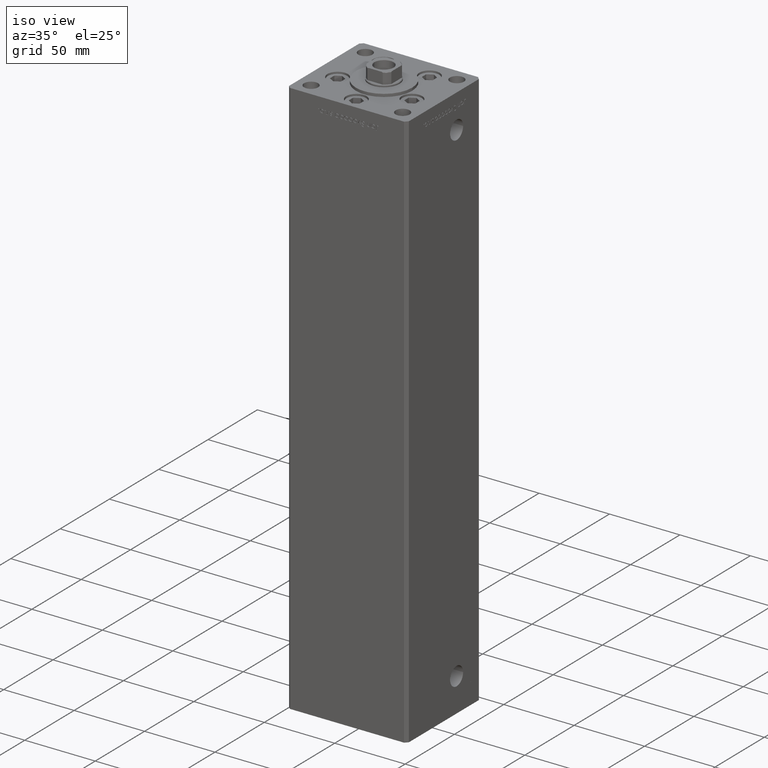
[diagram: clean part render]
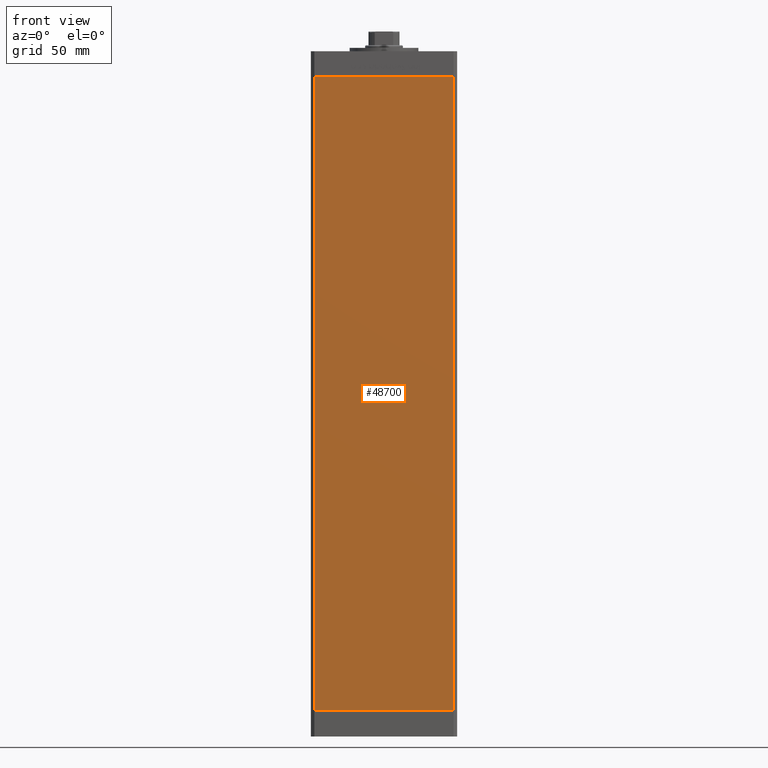
[diagram: tour spotlight — one face highlighted and labeled with its STEP entity id]
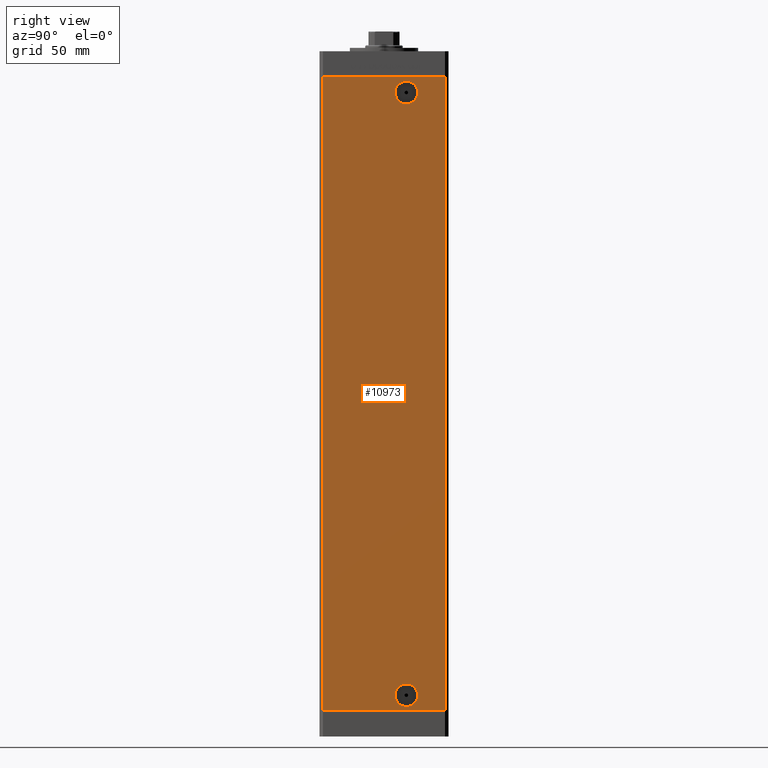
[diagram: tour spotlight — one face highlighted and labeled with its STEP entity id]
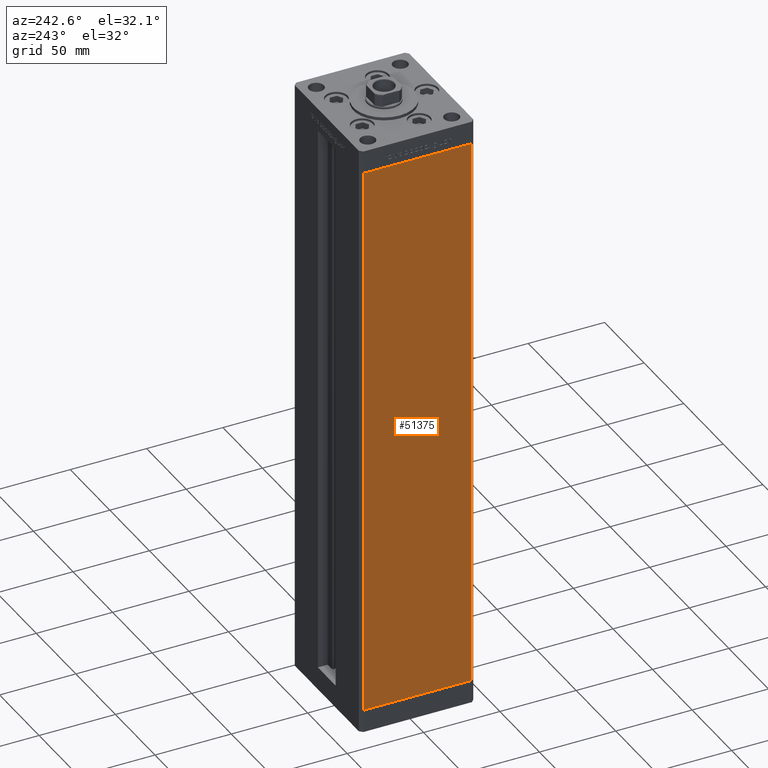
[diagram: tour spotlight — one face highlighted and labeled with its STEP entity id]
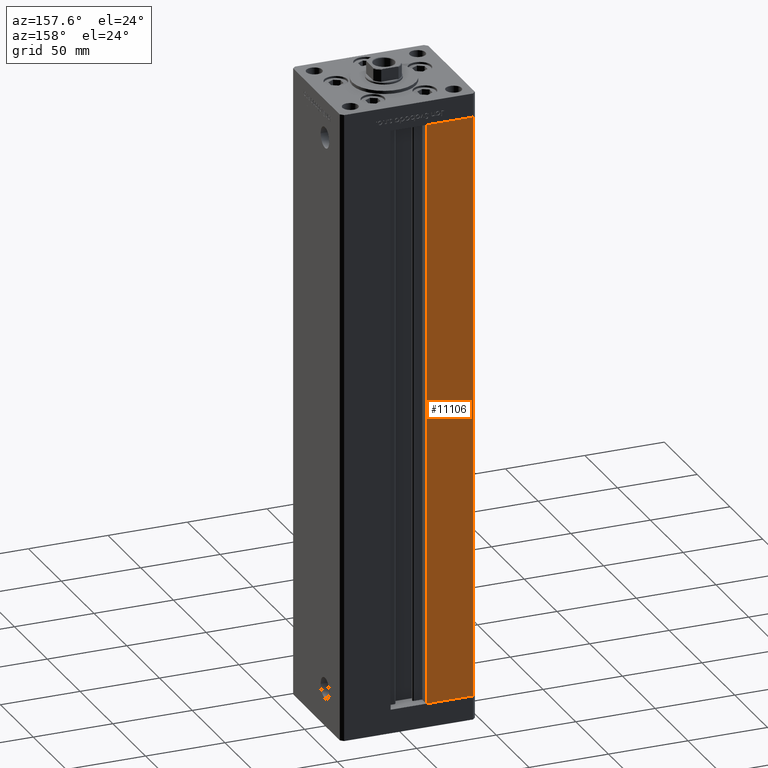
[diagram: tour spotlight — one face highlighted and labeled with its STEP entity id]
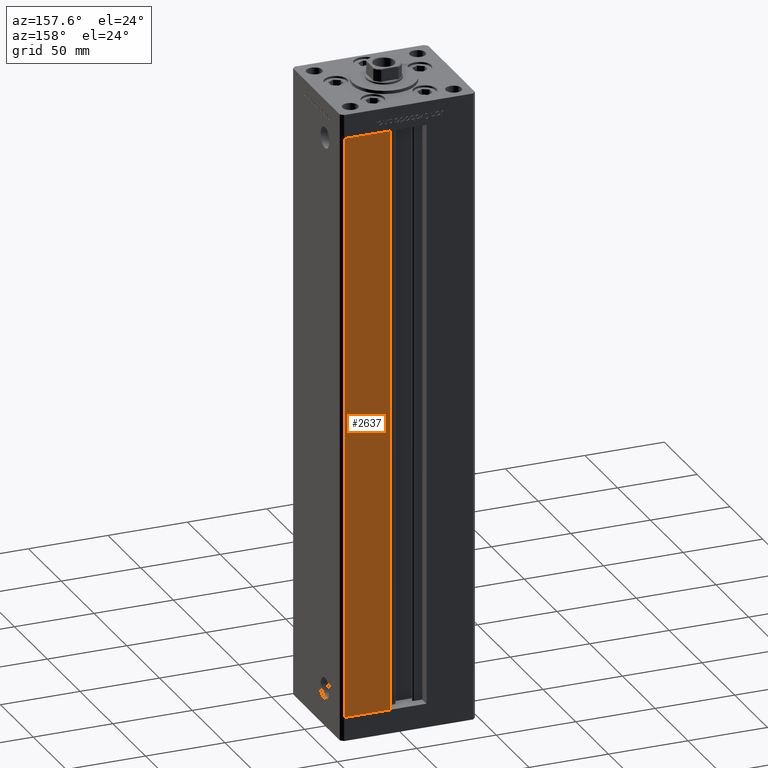
[diagram: tour spotlight — one face highlighted and labeled with its STEP entity id]
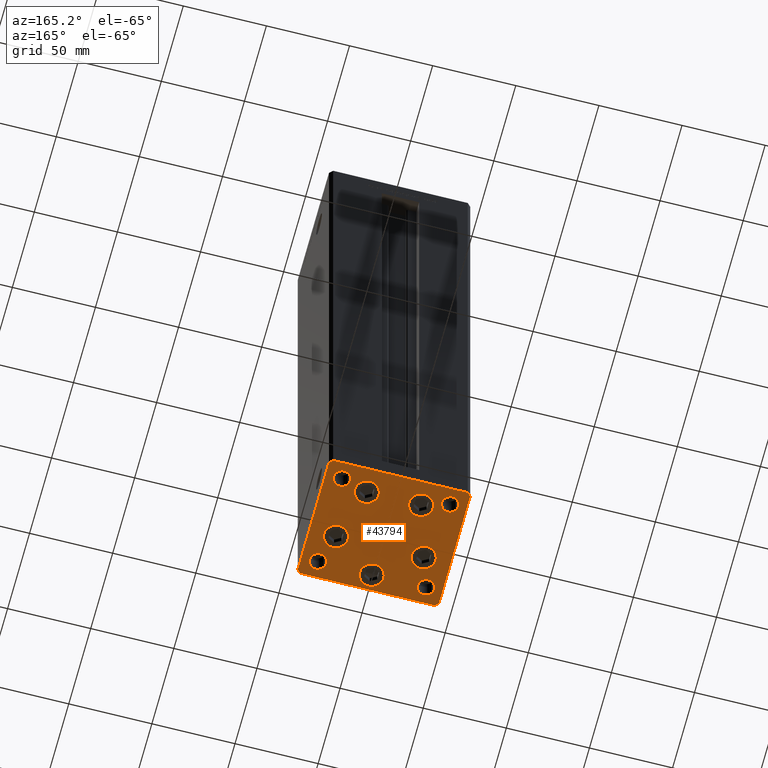
[diagram: tour spotlight — one face highlighted and labeled with its STEP entity id]
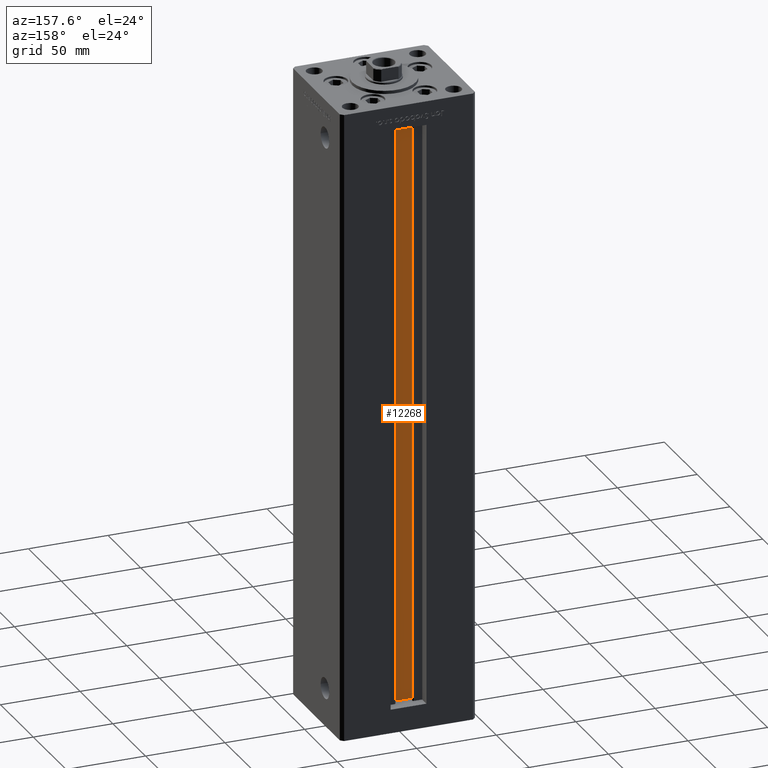
[diagram: tour spotlight — one face highlighted and labeled with its STEP entity id]
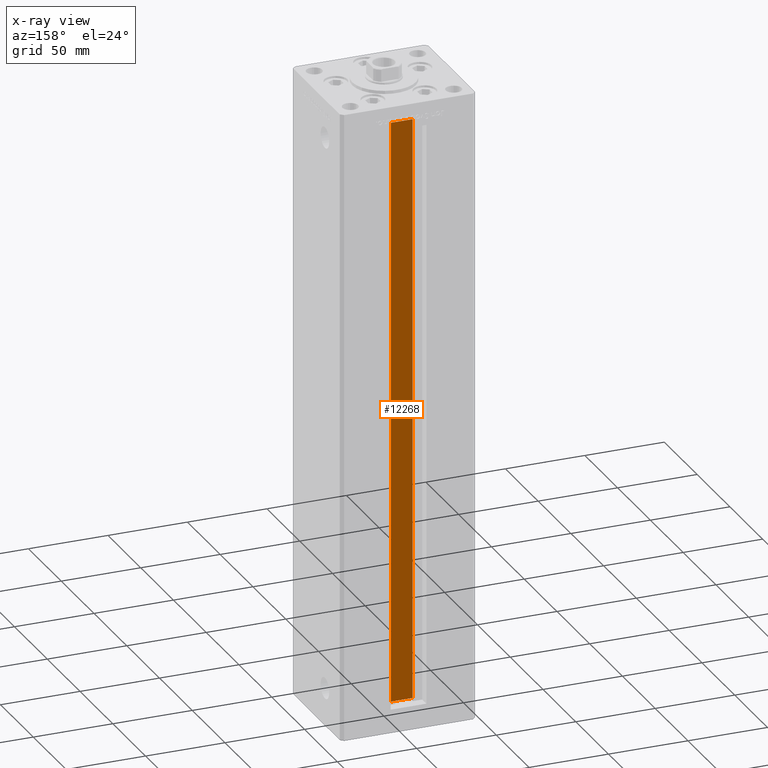
[diagram: x-ray of the same camera — body ghosted, this tour face saturated]
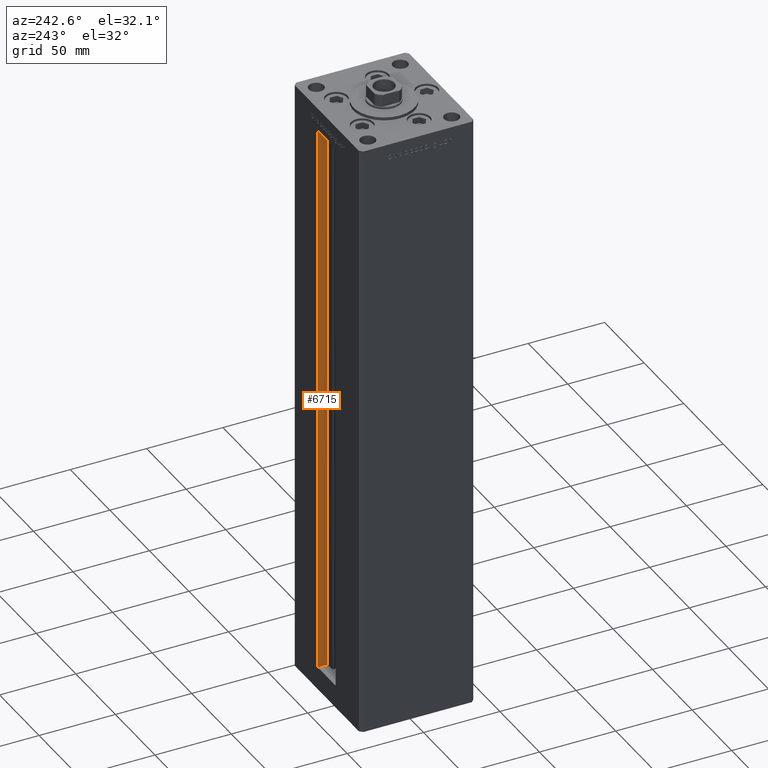
[diagram: tour spotlight — one face highlighted and labeled with its STEP entity id]
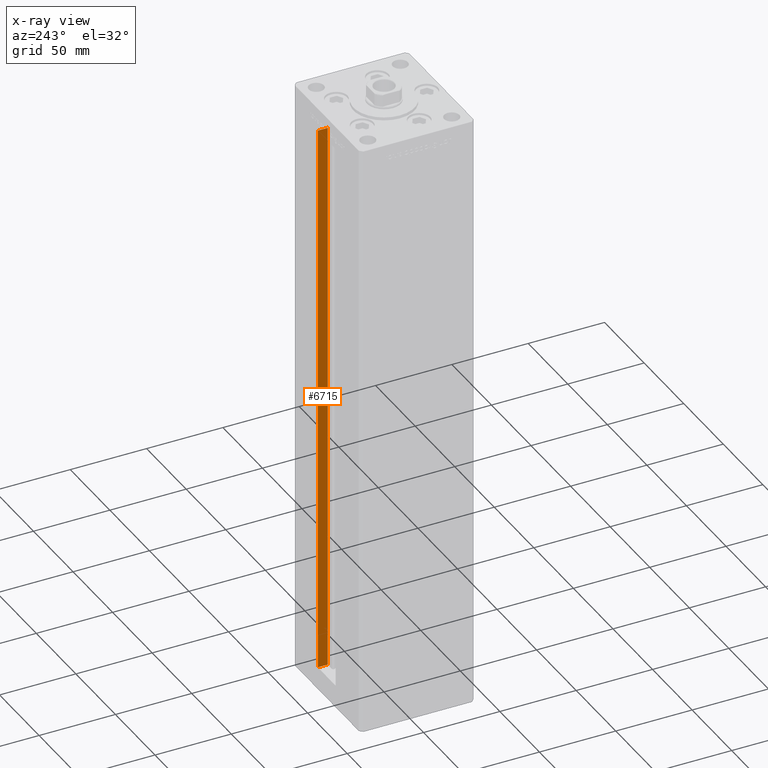
[diagram: x-ray of the same camera — body ghosted, this tour face saturated]
A machine part: a face-by-face anatomy tour. The part has 1183 B-rep faces; the first image is the clean iso view, then the 8 largest visible faces are spotlighted one at a time (largest first), each with its STEP entity span.

Face 1 — front view, entity #48700. In plain terms, the highlighted planar face has unit normal (0, 1, 0).
Definition (entity closure, byte-faithful):
#467 = EDGE_CURVE ( 'NONE', #14549, #14728, #13505, .T. ) ;
#1733 = CARTESIAN_POINT ( 'NONE',  ( -40.49999999999998579, -37.50000000000000711, 368.5000000000000000 ) ) ;
#1916 = PLANE ( 'NONE',  #14186 ) ;
#6724 = VERTEX_POINT ( 'NONE', #29802 ) ;
#7200 = ORIENTED_EDGE ( 'NONE', *, *, #24380, .F. ) ;
#8933 = VECTOR ( 'NONE', #29332, 1000.000000000000000 ) ;
#9858 = VECTOR ( 'NONE', #10466, 1000.000000000000000 ) ;
#10025 = LINE ( 'NONE', #50889, #26449 ) ;
#10087 = DIRECTION ( 'NONE',  ( 0.000000000000000000, -0.000000000000000000, 1.000000000000000000 ) ) ;
#10466 = DIRECTION ( 'NONE',  ( 1.000000000000000000, 0.000000000000000000, 0.000000000000000000 ) ) ;
#12718 = VECTOR ( 'NONE', #34933, 1000.000000000000000 ) ;
#13010 = FACE_OUTER_BOUND ( 'NONE', #34890, .T. ) ;
#13505 = LINE ( 'NONE', #26136, #8933 ) ;
#13849 = LINE ( 'NONE', #1733, #12718 ) ;
#13950 = CARTESIAN_POINT ( 'NONE',  ( 40.49999999999998579, -37.50000000000000711, 0.000000000000000000 ) ) ;
#14186 = AXIS2_PLACEMENT_3D ( 'NONE', #17999, #46224, #10087 ) ;
#14549 = VERTEX_POINT ( 'NONE', #41987 ) ;
#14728 = VERTEX_POINT ( 'NONE', #13950 ) ;
#17999 = CARTESIAN_POINT ( 'NONE',  ( -40.49999999999998579, -37.50000000000000711, 368.5000000000000000 ) ) ;
#24380 = EDGE_CURVE ( 'NONE', #6724, #14549, #13849, .T. ) ;
#26136 = CARTESIAN_POINT ( 'NONE',  ( 40.49999999999998579, -37.50000000000000711, 368.5000000000000000 ) ) ;
#26449 = VECTOR ( 'NONE', #30841, 1000.000000000000000 ) ;
#29332 = DIRECTION ( 'NONE',  ( -0.000000000000000000, -0.000000000000000000, -1.000000000000000000 ) ) ;
#29802 = CARTESIAN_POINT ( 'NONE',  ( -40.49999999999998579, -37.50000000000000711, 368.5000000000000000 ) ) ;
#30654 = CARTESIAN_POINT ( 'NONE',  ( -40.49999999999998579, -37.50000000000000711, 0.000000000000000000 ) ) ;
#30841 = DIRECTION ( 'NONE',  ( -0.000000000000000000, -0.000000000000000000, -1.000000000000000000 ) ) ;
#31682 = EDGE_CURVE ( 'NONE', #6724, #41483, #10025, .T. ) ;
#34890 = EDGE_LOOP ( 'NONE', ( #51338, #44227, #7200, #49768 ) ) ;
#34933 = DIRECTION ( 'NONE',  ( 1.000000000000000000, 0.000000000000000000, 0.000000000000000000 ) ) ;
#38949 = CARTESIAN_POINT ( 'NONE',  ( -40.49999999999998579, -37.50000000000000711, 0.000000000000000000 ) ) ;
#41483 = VERTEX_POINT ( 'NONE', #30654 ) ;
#41987 = CARTESIAN_POINT ( 'NONE',  ( 40.49999999999998579, -37.50000000000000711, 368.5000000000000000 ) ) ;
#44227 = ORIENTED_EDGE ( 'NONE', *, *, #467, .F. ) ;
#44581 = EDGE_CURVE ( 'NONE', #41483, #14728, #47384, .T. ) ;
#46224 = DIRECTION ( 'NONE',  ( 0.000000000000000000, 1.000000000000000000, 0.000000000000000000 ) ) ;
#47384 = LINE ( 'NONE', #38949, #9858 ) ;
#48700 = ADVANCED_FACE ( 'NONE', ( #13010 ), #1916, .F. ) ;
#49768 = ORIENTED_EDGE ( 'NONE', *, *, #31682, .T. ) ;
#50889 = CARTESIAN_POINT ( 'NONE',  ( -40.49999999999998579, -37.50000000000000711, 368.5000000000000000 ) ) ;
#51338 = ORIENTED_EDGE ( 'NONE', *, *, #44581, .T. ) ;

Face 2 — right view, entity #10973. In plain terms, the highlighted planar face has unit normal (1, -0, 0).
Definition (entity closure, byte-faithful):
#1327 = EDGE_CURVE ( 'NONE', #38264, #23560, #32575, .T. ) ;
#1468 = AXIS2_PLACEMENT_3D ( 'NONE', #40459, #32536, #3539 ) ;
#1555 = FACE_BOUND ( 'NONE', #40056, .T. ) ;
#2014 = EDGE_CURVE ( 'NONE', #22248, #23560, #17598, .T. ) ;
#3539 = DIRECTION ( 'NONE',  ( 0.000000000000000000, 1.000000000000000000, 0.000000000000000000 ) ) ;
#4140 = AXIS2_PLACEMENT_3D ( 'NONE', #47026, #42304, #10885 ) ;
#4469 = CARTESIAN_POINT ( 'NONE',  ( 42.49999999999999289, 19.57999999999998764, 359.5000000000000000 ) ) ;
#5051 = DIRECTION ( 'NONE',  ( -0.000000000000000000, -0.000000000000000000, -1.000000000000000000 ) ) ;
#5308 = CARTESIAN_POINT ( 'NONE',  ( 42.50000000000000711, 35.50000000000001421, 368.5000000000000000 ) ) ;
#5562 = CARTESIAN_POINT ( 'NONE',  ( 42.49999999999999289, 19.57999999999999829, 9.000000000000000000 ) ) ;
#6027 = FACE_BOUND ( 'NONE', #44710, .T. ) ;
#6541 = CARTESIAN_POINT ( 'NONE',  ( 42.50000000000000711, 35.50000000000001421, 368.5000000000000000 ) ) ;
#7075 = VERTEX_POINT ( 'NONE', #30250 ) ;
#7560 = DIRECTION ( 'NONE',  ( 0.000000000000000000, 1.000000000000000000, 0.000000000000000000 ) ) ;
#7999 = EDGE_CURVE ( 'NONE', #8390, #22248, #29382, .T. ) ;
#8296 = DIRECTION ( 'NONE',  ( -2.931927001650941360E-16, -1.000000000000000000, 0.000000000000000000 ) ) ;
#8390 = VERTEX_POINT ( 'NONE', #6541 ) ;
#9114 = DIRECTION ( 'NONE',  ( -2.931927001650941360E-16, -1.000000000000000000, 0.000000000000000000 ) ) ;
#9204 = CARTESIAN_POINT ( 'NONE',  ( 42.50000000000000711, 35.50000000000001421, 0.000000000000000000 ) ) ;
#9818 = VECTOR ( 'NONE', #8296, 1000.000000000000000 ) ;
#10098 = EDGE_CURVE ( 'NONE', #43874, #16264, #29288, .T. ) ;
#10480 = FACE_OUTER_BOUND ( 'NONE', #43005, .T. ) ;
#10885 = DIRECTION ( 'NONE',  ( 0.000000000000000000, 1.000000000000000000, 0.000000000000000000 ) ) ;
#10973 = ADVANCED_FACE ( 'NONE', ( #1555, #6027, #10480 ), #46368, .T. ) ;
#12211 = ORIENTED_EDGE ( 'NONE', *, *, #10098, .F. ) ;
#14230 = EDGE_CURVE ( 'NONE', #16264, #43874, #48765, .T. ) ;
#14774 = ORIENTED_EDGE ( 'NONE', *, *, #48488, .F. ) ;
#15387 = CARTESIAN_POINT ( 'NONE',  ( 42.49999999999999289, 13.00000000000000000, 9.000000000000000000 ) ) ;
#16264 = VERTEX_POINT ( 'NONE', #4469 ) ;
#17591 = AXIS2_PLACEMENT_3D ( 'NONE', #47645, #27588, #7560 ) ;
#17598 = LINE ( 'NONE', #33429, #45189 ) ;
#22248 = VERTEX_POINT ( 'NONE', #27174 ) ;
#22785 = DIRECTION ( 'NONE',  ( 0.000000000000000000, 1.000000000000000000, 0.000000000000000000 ) ) ;
#23210 = VECTOR ( 'NONE', #9114, 1000.000000000000000 ) ;
#23560 = VERTEX_POINT ( 'NONE', #38565 ) ;
#24887 = CARTESIAN_POINT ( 'NONE',  ( 42.50000000000000711, 35.50000000000001421, 368.5000000000000000 ) ) ;
#27174 = CARTESIAN_POINT ( 'NONE',  ( 42.49999999999998579, -35.50000000000000711, 368.5000000000000000 ) ) ;
#27588 = DIRECTION ( 'NONE',  ( 1.000000000000000000, -2.275047181608927644E-16, 0.000000000000000000 ) ) ;
#28029 = ORIENTED_EDGE ( 'NONE', *, *, #35168, .F. ) ;
#29288 = CIRCLE ( 'NONE', #1468, 6.579999999999986748 ) ;
#29382 = LINE ( 'NONE', #24887, #9818 ) ;
#30250 = CARTESIAN_POINT ( 'NONE',  ( 42.49999999999999289, 6.420000000000000817, 9.000000000000000000 ) ) ;
#31482 = DIRECTION ( 'NONE',  ( 1.000000000000000000, -2.275047181608927644E-16, 0.000000000000000000 ) ) ;
#32536 = DIRECTION ( 'NONE',  ( 1.000000000000000000, -2.275047181608927644E-16, 0.000000000000000000 ) ) ;
#32575 = LINE ( 'NONE', #37578, #23210 ) ;
#33429 = CARTESIAN_POINT ( 'NONE',  ( 42.49999999999998579, -35.50000000000000711, 368.5000000000000000 ) ) ;
#34076 = ORIENTED_EDGE ( 'NONE', *, *, #2014, .T. ) ;
#34451 = CIRCLE ( 'NONE', #17591, 6.579999999999997407 ) ;
#35168 = EDGE_CURVE ( 'NONE', #8390, #38264, #40657, .T. ) ;
#35238 = CIRCLE ( 'NONE', #49564, 6.579999999999997407 ) ;
#35356 = VERTEX_POINT ( 'NONE', #5562 ) ;
#37578 = CARTESIAN_POINT ( 'NONE',  ( 42.50000000000000711, 35.50000000000001421, 0.000000000000000000 ) ) ;
#38159 = DIRECTION ( 'NONE',  ( -0.000000000000000000, -0.000000000000000000, -1.000000000000000000 ) ) ;
#38264 = VERTEX_POINT ( 'NONE', #9204 ) ;
#38360 = VECTOR ( 'NONE', #5051, 1000.000000000000000 ) ;
#38452 = DIRECTION ( 'NONE',  ( 1.000000000000000000, -2.931927001650941360E-16, 0.000000000000000000 ) ) ;
#38565 = CARTESIAN_POINT ( 'NONE',  ( 42.49999999999998579, -35.50000000000000711, 0.000000000000000000 ) ) ;
#40056 = EDGE_LOOP ( 'NONE', ( #43882, #12211 ) ) ;
#40459 = CARTESIAN_POINT ( 'NONE',  ( 42.49999999999999289, 13.00000000000000000, 359.5000000000000000 ) ) ;
#40657 = LINE ( 'NONE', #5308, #38360 ) ;
#42304 = DIRECTION ( 'NONE',  ( 1.000000000000000000, -2.275047181608927644E-16, 0.000000000000000000 ) ) ;
#42799 = AXIS2_PLACEMENT_3D ( 'NONE', #49824, #38452, #50585 ) ;
#43005 = EDGE_LOOP ( 'NONE', ( #43530, #28029, #48849, #34076 ) ) ;
#43530 = ORIENTED_EDGE ( 'NONE', *, *, #1327, .F. ) ;
#43874 = VERTEX_POINT ( 'NONE', #45305 ) ;
#43882 = ORIENTED_EDGE ( 'NONE', *, *, #14230, .F. ) ;
#44710 = EDGE_LOOP ( 'NONE', ( #50500, #14774 ) ) ;
#45189 = VECTOR ( 'NONE', #38159, 1000.000000000000000 ) ;
#45305 = CARTESIAN_POINT ( 'NONE',  ( 42.49999999999999289, 6.420000000000013252, 359.5000000000000000 ) ) ;
#46368 = PLANE ( 'NONE',  #42799 ) ;
#47026 = CARTESIAN_POINT ( 'NONE',  ( 42.49999999999999289, 13.00000000000000000, 359.5000000000000000 ) ) ;
#47645 = CARTESIAN_POINT ( 'NONE',  ( 42.49999999999999289, 13.00000000000000000, 9.000000000000000000 ) ) ;
#48488 = EDGE_CURVE ( 'NONE', #7075, #35356, #35238, .T. ) ;
#48765 = CIRCLE ( 'NONE', #4140, 6.579999999999986748 ) ;
#48849 = ORIENTED_EDGE ( 'NONE', *, *, #7999, .T. ) ;
#49564 = AXIS2_PLACEMENT_3D ( 'NONE', #15387, #31482, #22785 ) ;
#49824 = CARTESIAN_POINT ( 'NONE',  ( 42.50000000000000711, 35.50000000000001421, 368.5000000000000000 ) ) ;
#50500 = ORIENTED_EDGE ( 'NONE', *, *, #50694, .F. ) ;
#50585 = DIRECTION ( 'NONE',  ( 2.931927001650941360E-16, 1.000000000000000000, 0.000000000000000000 ) ) ;
#50694 = EDGE_CURVE ( 'NONE', #35356, #7075, #34451, .T. ) ;

Face 3 — auxiliary view, entity #51375. In plain terms, the highlighted planar face has unit normal (1, 0, 0).
Definition (entity closure, byte-faithful):
#919 = EDGE_LOOP ( 'NONE', ( #32886, #11689, #14041, #15195 ) ) ;
#2319 = DIRECTION ( 'NONE',  ( -2.931927001650941360E-16, 1.000000000000000000, 0.000000000000000000 ) ) ;
#3146 = CARTESIAN_POINT ( 'NONE',  ( -42.49999999999998579, -35.50000000000000711, 368.5000000000000000 ) ) ;
#5034 = EDGE_CURVE ( 'NONE', #38137, #16075, #7257, .T. ) ;
#7257 = LINE ( 'NONE', #51833, #28418 ) ;
#8378 = CARTESIAN_POINT ( 'NONE',  ( -42.50000000000000711, 35.50000000000001421, 0.000000000000000000 ) ) ;
#11689 = ORIENTED_EDGE ( 'NONE', *, *, #5034, .F. ) ;
#14041 = ORIENTED_EDGE ( 'NONE', *, *, #19945, .F. ) ;
#15195 = ORIENTED_EDGE ( 'NONE', *, *, #26983, .T. ) ;
#16075 = VERTEX_POINT ( 'NONE', #45137 ) ;
#19945 = EDGE_CURVE ( 'NONE', #46755, #38137, #34627, .T. ) ;
#19989 = CARTESIAN_POINT ( 'NONE',  ( -42.50000000000000711, 35.50000000000001421, 0.000000000000000000 ) ) ;
#24816 = VECTOR ( 'NONE', #32909, 1000.000000000000000 ) ;
#26983 = EDGE_CURVE ( 'NONE', #46755, #36601, #29664, .T. ) ;
#28418 = VECTOR ( 'NONE', #31011, 1000.000000000000000 ) ;
#28938 = EDGE_CURVE ( 'NONE', #36601, #16075, #40814, .T. ) ;
#29664 = LINE ( 'NONE', #45758, #44768 ) ;
#30258 = AXIS2_PLACEMENT_3D ( 'NONE', #43432, #46366, #2319 ) ;
#31011 = DIRECTION ( 'NONE',  ( -0.000000000000000000, -0.000000000000000000, -1.000000000000000000 ) ) ;
#31053 = PLANE ( 'NONE',  #30258 ) ;
#32886 = ORIENTED_EDGE ( 'NONE', *, *, #28938, .T. ) ;
#32909 = DIRECTION ( 'NONE',  ( 2.931927001650941360E-16, -1.000000000000000000, 0.000000000000000000 ) ) ;
#33604 = DIRECTION ( 'NONE',  ( 2.931927001650941360E-16, -1.000000000000000000, 0.000000000000000000 ) ) ;
#34627 = LINE ( 'NONE', #50712, #35452 ) ;
#35452 = VECTOR ( 'NONE', #33604, 1000.000000000000000 ) ;
#36601 = VERTEX_POINT ( 'NONE', #19989 ) ;
#37845 = DIRECTION ( 'NONE',  ( -0.000000000000000000, -0.000000000000000000, -1.000000000000000000 ) ) ;
#38137 = VERTEX_POINT ( 'NONE', #3146 ) ;
#39015 = CARTESIAN_POINT ( 'NONE',  ( -42.50000000000000711, 35.50000000000001421, 368.5000000000000000 ) ) ;
#40814 = LINE ( 'NONE', #8378, #24816 ) ;
#43432 = CARTESIAN_POINT ( 'NONE',  ( -42.50000000000000711, 35.50000000000001421, 368.5000000000000000 ) ) ;
#44768 = VECTOR ( 'NONE', #37845, 1000.000000000000000 ) ;
#45137 = CARTESIAN_POINT ( 'NONE',  ( -42.49999999999998579, -35.50000000000000711, 0.000000000000000000 ) ) ;
#45758 = CARTESIAN_POINT ( 'NONE',  ( -42.50000000000000711, 35.50000000000001421, 368.5000000000000000 ) ) ;
#46366 = DIRECTION ( 'NONE',  ( 1.000000000000000000, 2.931927001650941360E-16, -0.000000000000000000 ) ) ;
#46755 = VERTEX_POINT ( 'NONE', #39015 ) ;
#50712 = CARTESIAN_POINT ( 'NONE',  ( -42.50000000000000711, 35.50000000000001421, 368.5000000000000000 ) ) ;
#50834 = FACE_OUTER_BOUND ( 'NONE', #919, .T. ) ;
#51375 = ADVANCED_FACE ( 'NONE', ( #50834 ), #31053, .F. ) ;
#51833 = CARTESIAN_POINT ( 'NONE',  ( -42.49999999999998579, -35.50000000000000711, 368.5000000000000000 ) ) ;

Face 4 — auxiliary view, entity #11106. In plain terms, the highlighted planar face has unit normal (-0, -1, 0).
Definition (entity closure, byte-faithful):
#163 = DIRECTION ( 'NONE',  ( -0.000000000000000000, -0.000000000000000000, 1.000000000000000000 ) ) ;
#532 = VECTOR ( 'NONE', #163, 1000.000000000000000 ) ;
#849 = CARTESIAN_POINT ( 'NONE',  ( -11.25000000000000000, 37.50000000000000000, 0.000000000000000000 ) ) ;
#2224 = DIRECTION ( 'NONE',  ( -0.000000000000000000, -0.000000000000000000, -1.000000000000000000 ) ) ;
#2289 = CARTESIAN_POINT ( 'NONE',  ( -40.50000000000000000, 37.50000000000000711, 0.000000000000000000 ) ) ;
#4686 = VERTEX_POINT ( 'NONE', #38982 ) ;
#5726 = VECTOR ( 'NONE', #2224, 1000.000000000000000 ) ;
#6373 = ORIENTED_EDGE ( 'NONE', *, *, #36118, .T. ) ;
#7012 = CARTESIAN_POINT ( 'NONE',  ( -11.25000000000000000, 37.50000000000000000, 368.5000000000000000 ) ) ;
#8339 = CARTESIAN_POINT ( 'NONE',  ( -11.25000000000000000, 37.50000000000000000, 0.000000000000000000 ) ) ;
#8605 = LINE ( 'NONE', #8339, #532 ) ;
#10083 = VECTOR ( 'NONE', #15474, 1000.000000000000000 ) ;
#10752 = VERTEX_POINT ( 'NONE', #11314 ) ;
#10903 = CARTESIAN_POINT ( 'NONE',  ( -40.50000000000000000, 37.50000000000000711, 368.5000000000000000 ) ) ;
#11106 = ADVANCED_FACE ( 'NONE', ( #20225 ), #17056, .F. ) ;
#11314 = CARTESIAN_POINT ( 'NONE',  ( -40.50000000000000000, 37.50000000000000711, 368.5000000000000000 ) ) ;
#12710 = LINE ( 'NONE', #849, #14787 ) ;
#14787 = VECTOR ( 'NONE', #21405, 1000.000000000000000 ) ;
#15474 = DIRECTION ( 'NONE',  ( 1.000000000000000000, 0.000000000000000000, 0.000000000000000000 ) ) ;
#16539 = EDGE_CURVE ( 'NONE', #10752, #22718, #24161, .T. ) ;
#17056 = PLANE ( 'NONE',  #49565 ) ;
#20225 = FACE_OUTER_BOUND ( 'NONE', #43543, .T. ) ;
#21272 = DIRECTION ( 'NONE',  ( 1.000000000000000000, -2.372271420139223331E-16, 0.000000000000000000 ) ) ;
#21405 = DIRECTION ( 'NONE',  ( -1.000000000000000000, 2.372271420139223331E-16, 0.000000000000000000 ) ) ;
#22718 = VERTEX_POINT ( 'NONE', #7012 ) ;
#24161 = LINE ( 'NONE', #43435, #10083 ) ;
#36118 = EDGE_CURVE ( 'NONE', #4686, #36770, #12710, .T. ) ;
#36770 = VERTEX_POINT ( 'NONE', #2289 ) ;
#37775 = EDGE_CURVE ( 'NONE', #4686, #22718, #8605, .T. ) ;
#38982 = CARTESIAN_POINT ( 'NONE',  ( -11.25000000000000000, 37.50000000000000000, 0.000000000000000000 ) ) ;
#39958 = ORIENTED_EDGE ( 'NONE', *, *, #47634, .F. ) ;
#41323 = DIRECTION ( 'NONE',  ( -2.372271420139223331E-16, -1.000000000000000000, 0.000000000000000000 ) ) ;
#42567 = LINE ( 'NONE', #10903, #5726 ) ;
#43435 = CARTESIAN_POINT ( 'NONE',  ( -11.25000000000000000, 37.50000000000000000, 368.5000000000000000 ) ) ;
#43543 = EDGE_LOOP ( 'NONE', ( #49071, #45360, #6373, #39958 ) ) ;
#45360 = ORIENTED_EDGE ( 'NONE', *, *, #37775, .F. ) ;
#47634 = EDGE_CURVE ( 'NONE', #10752, #36770, #42567, .T. ) ;
#48446 = CARTESIAN_POINT ( 'NONE',  ( -11.25000000000000000, 37.50000000000000000, 368.5000000000000000 ) ) ;
#49071 = ORIENTED_EDGE ( 'NONE', *, *, #16539, .T. ) ;
#49565 = AXIS2_PLACEMENT_3D ( 'NONE', #48446, #41323, #21272 ) ;

Face 5 — auxiliary view, entity #2637. In plain terms, the highlighted planar face has unit normal (-0, -1, 0).
Definition (entity closure, byte-faithful):
#517 = VERTEX_POINT ( 'NONE', #5587 ) ;
#872 = CARTESIAN_POINT ( 'NONE',  ( 40.50000000000000000, 37.50000000000000711, 0.000000000000000000 ) ) ;
#1498 = CARTESIAN_POINT ( 'NONE',  ( 11.25000000000000000, 37.50000000000000000, 0.000000000000000000 ) ) ;
#1645 = FACE_OUTER_BOUND ( 'NONE', #18642, .T. ) ;
#2570 = VERTEX_POINT ( 'NONE', #872 ) ;
#2637 = ADVANCED_FACE ( 'NONE', ( #1645 ), #17468, .F. ) ;
#4178 = VERTEX_POINT ( 'NONE', #25263 ) ;
#5587 = CARTESIAN_POINT ( 'NONE',  ( 40.50000000000000000, 37.50000000000000711, 368.5000000000000000 ) ) ;
#6791 = LINE ( 'NONE', #14698, #34411 ) ;
#7170 = ORIENTED_EDGE ( 'NONE', *, *, #24215, .T. ) ;
#8508 = EDGE_CURVE ( 'NONE', #38143, #4178, #17319, .T. ) ;
#9748 = EDGE_CURVE ( 'NONE', #2570, #38143, #18039, .T. ) ;
#12094 = CARTESIAN_POINT ( 'NONE',  ( 11.25000000000000000, 37.50000000000000000, 0.000000000000000000 ) ) ;
#12994 = EDGE_CURVE ( 'NONE', #517, #2570, #6791, .T. ) ;
#13250 = DIRECTION ( 'NONE',  ( -2.372271420139223331E-16, -1.000000000000000000, 0.000000000000000000 ) ) ;
#14698 = CARTESIAN_POINT ( 'NONE',  ( 40.50000000000000000, 37.50000000000000711, 368.5000000000000000 ) ) ;
#17319 = LINE ( 'NONE', #1498, #36826 ) ;
#17468 = PLANE ( 'NONE',  #51916 ) ;
#18039 = LINE ( 'NONE', #30943, #41082 ) ;
#18642 = EDGE_LOOP ( 'NONE', ( #24986, #23290, #7170, #27607 ) ) ;
#18814 = DIRECTION ( 'NONE',  ( -1.000000000000000000, 2.372271420139223331E-16, 0.000000000000000000 ) ) ;
#23123 = DIRECTION ( 'NONE',  ( -0.000000000000000000, -0.000000000000000000, -1.000000000000000000 ) ) ;
#23290 = ORIENTED_EDGE ( 'NONE', *, *, #8508, .T. ) ;
#23634 = DIRECTION ( 'NONE',  ( 1.000000000000000000, 0.000000000000000000, 0.000000000000000000 ) ) ;
#24215 = EDGE_CURVE ( 'NONE', #4178, #517, #28372, .T. ) ;
#24480 = VECTOR ( 'NONE', #23634, 1000.000000000000000 ) ;
#24986 = ORIENTED_EDGE ( 'NONE', *, *, #9748, .T. ) ;
#25263 = CARTESIAN_POINT ( 'NONE',  ( 11.24999999999999289, 37.50000000000000000, 368.5000000000000000 ) ) ;
#25487 = DIRECTION ( 'NONE',  ( -0.000000000000000000, -0.000000000000000000, 1.000000000000000000 ) ) ;
#27607 = ORIENTED_EDGE ( 'NONE', *, *, #12994, .T. ) ;
#28372 = LINE ( 'NONE', #36304, #24480 ) ;
#29602 = CARTESIAN_POINT ( 'NONE',  ( -11.25000000000000000, 37.50000000000000000, 368.5000000000000000 ) ) ;
#30943 = CARTESIAN_POINT ( 'NONE',  ( -11.25000000000000000, 37.50000000000000000, 0.000000000000000000 ) ) ;
#34411 = VECTOR ( 'NONE', #23123, 1000.000000000000000 ) ;
#36304 = CARTESIAN_POINT ( 'NONE',  ( -11.25000000000000000, 37.50000000000000000, 368.5000000000000000 ) ) ;
#36826 = VECTOR ( 'NONE', #25487, 1000.000000000000000 ) ;
#38143 = VERTEX_POINT ( 'NONE', #12094 ) ;
#41082 = VECTOR ( 'NONE', #18814, 1000.000000000000000 ) ;
#45440 = DIRECTION ( 'NONE',  ( 1.000000000000000000, -2.372271420139223331E-16, 0.000000000000000000 ) ) ;
#51916 = AXIS2_PLACEMENT_3D ( 'NONE', #29602, #13250, #45440 ) ;

Face 6 — auxiliary view, entity #43794. In plain terms, the highlighted planar face has unit normal (0, 0, -1).
Definition (entity closure, byte-faithful):
#205 = FACE_BOUND ( 'NONE', #6550, .T. ) ;
#1055 = VERTEX_POINT ( 'NONE', #22834 ) ;
#1191 = EDGE_LOOP ( 'NONE', ( #10244, #5325 ) ) ;
#1701 = AXIS2_PLACEMENT_3D ( 'NONE', #27998, #48058, #40924 ) ;
#1810 = AXIS2_PLACEMENT_3D ( 'NONE', #13041, #48928, #17003 ) ;
#1821 = CARTESIAN_POINT ( 'NONE',  ( -9.072913342905431833, 22.74999999999999645, 0.000000000000000000 ) ) ;
#1918 = EDGE_CURVE ( 'NONE', #17214, #35833, #21289, .T. ) ;
#2238 = DIRECTION ( 'NONE',  ( 1.000000000000000000, 0.000000000000000000, 0.000000000000000000 ) ) ;
#2499 = DIRECTION ( 'NONE',  ( 0.000000000000000000, -0.000000000000000000, -1.000000000000000000 ) ) ;
#2644 = CARTESIAN_POINT ( 'NONE',  ( 32.50000000000000000, 27.49999999999999645, 0.000000000000000000 ) ) ;
#2815 = CARTESIAN_POINT ( 'NONE',  ( 7.250000000000003553, -28.00000000000000000, 0.000000000000000000 ) ) ;
#3090 = CARTESIAN_POINT ( 'NONE',  ( 42.50000000000000711, -35.50000000000000000, 0.000000000000000000 ) ) ;
#3194 = AXIS2_PLACEMENT_3D ( 'NONE', #48212, #35559, #11272 ) ;
#3300 = CIRCLE ( 'NONE', #32796, 4.999999999999997335 ) ;
#3374 = FACE_BOUND ( 'NONE', #28999, .T. ) ;
#3589 = VERTEX_POINT ( 'NONE', #13519 ) ;
#3847 = DIRECTION ( 'NONE',  ( 0.000000000000000000, -0.000000000000000000, -1.000000000000000000 ) ) ;
#3900 = CARTESIAN_POINT ( 'NONE',  ( 37.50000000000000000, -27.49999999999999645, 0.000000000000000000 ) ) ;
#4668 = ORIENTED_EDGE ( 'NONE', *, *, #42832, .T. ) ;
#5325 = ORIENTED_EDGE ( 'NONE', *, *, #21431, .T. ) ;
#5896 = DIRECTION ( 'NONE',  ( 1.000000000000000000, 0.000000000000000000, 0.000000000000000000 ) ) ;
#5961 = ORIENTED_EDGE ( 'NONE', *, *, #27978, .T. ) ;
#6066 = CARTESIAN_POINT ( 'NONE',  ( 42.49999999999992895, 35.50000000000000000, 0.000000000000000000 ) ) ;
#6187 = VERTEX_POINT ( 'NONE', #33893 ) ;
#6291 = DIRECTION ( 'NONE',  ( 1.000000000000000000, 0.000000000000000000, 0.000000000000000000 ) ) ;
#6550 = EDGE_LOOP ( 'NONE', ( #27685, #36586 ) ) ;
#6556 = CARTESIAN_POINT ( 'NONE',  ( -42.50000000000000000, -35.50000000000000711, 0.000000000000000000 ) ) ;
#7191 = EDGE_LOOP ( 'NONE', ( #23881, #48044 ) ) ;
#7451 = EDGE_LOOP ( 'NONE', ( #48886, #26718 ) ) ;
#7758 = CARTESIAN_POINT ( 'NONE',  ( 40.50000000000000000, -37.50000000000000711, 0.000000000000000000 ) ) ;
#8970 = CIRCLE ( 'NONE', #38436, 5.000000000000000888 ) ;
#8985 = CARTESIAN_POINT ( 'NONE',  ( -40.49999999999999289, -37.50000000000002132, 0.000000000000000000 ) ) ;
#9225 = VERTEX_POINT ( 'NONE', #39832 ) ;
#9366 = VERTEX_POINT ( 'NONE', #43139 ) ;
#9378 = AXIS2_PLACEMENT_3D ( 'NONE', #34328, #30363, #42491 ) ;
#9426 = DIRECTION ( 'NONE',  ( 9.773090005503140331E-17, -1.000000000000000000, 0.000000000000000000 ) ) ;
#9541 = CIRCLE ( 'NONE', #39840, 7.249999999999999112 ) ;
#10100 = CARTESIAN_POINT ( 'NONE',  ( 16.32291334290542295, 22.75000000000000000, 0.000000000000000000 ) ) ;
#10233 = DIRECTION ( 'NONE',  ( -1.172770800660376741E-15, 1.000000000000000000, 0.000000000000000000 ) ) ;
#10244 = ORIENTED_EDGE ( 'NONE', *, *, #44860, .T. ) ;
#10260 = DIRECTION ( 'NONE',  ( -1.000000000000000000, -3.426614273534436165E-16, 0.000000000000000000 ) ) ;
#10543 = DIRECTION ( 'NONE',  ( 1.000000000000000000, 0.000000000000000000, 0.000000000000000000 ) ) ;
#10750 = AXIS2_PLACEMENT_3D ( 'NONE', #44186, #15181, #39447 ) ;
#11046 = CIRCLE ( 'NONE', #1810, 7.249999999999999112 ) ;
#11239 = DIRECTION ( 'NONE',  ( 1.000000000000000000, 0.000000000000000000, 0.000000000000000000 ) ) ;
#11272 = DIRECTION ( 'NONE',  ( 1.000000000000000000, 0.000000000000000000, 0.000000000000000000 ) ) ;
#11403 = EDGE_LOOP ( 'NONE', ( #21382, #31190, #35999, #26752, #30628, #33189, #42537, #21473 ) ) ;
#11954 = EDGE_CURVE ( 'NONE', #36535, #41897, #40318, .T. ) ;
#12064 = EDGE_CURVE ( 'NONE', #37275, #6187, #23432, .T. ) ;
#12145 = DIRECTION ( 'NONE',  ( 1.000000000000000000, 1.713307136767217096E-16, 0.000000000000000000 ) ) ;
#12553 = CARTESIAN_POINT ( 'NONE',  ( -32.50000000000000000, 27.50000000000000355, 0.000000000000000000 ) ) ;
#12802 = VECTOR ( 'NONE', #10260, 1000.000000000000000 ) ;
#13020 = DIRECTION ( 'NONE',  ( -0.000000000000000000, 0.000000000000000000, 1.000000000000000000 ) ) ;
#13023 = EDGE_CURVE ( 'NONE', #9225, #25842, #51100, .T. ) ;
#13041 = CARTESIAN_POINT ( 'NONE',  ( 26.39865316429776954, -9.333333333333330373, 0.000000000000000000 ) ) ;
#13447 = ORIENTED_EDGE ( 'NONE', *, *, #11954, .T. ) ;
#13519 = CARTESIAN_POINT ( 'NONE',  ( -40.49999999999999289, -37.50000000000002132, 0.000000000000000000 ) ) ;
#13746 = CARTESIAN_POINT ( 'NONE',  ( 27.50000000000000355, -27.49999999999999645, 0.000000000000000000 ) ) ;
#14002 = CIRCLE ( 'NONE', #24955, 7.250000000000000000 ) ;
#14272 = CARTESIAN_POINT ( 'NONE',  ( 23.57291334290542295, 22.75000000000000000, 0.000000000000000000 ) ) ;
#14310 = DIRECTION ( 'NONE',  ( 0.000000000000000000, -0.000000000000000000, -1.000000000000000000 ) ) ;
#14393 = DIRECTION ( 'NONE',  ( -0.000000000000000000, 0.000000000000000000, 1.000000000000000000 ) ) ;
#15047 = AXIS2_PLACEMENT_3D ( 'NONE', #26003, #14393, #42109 ) ;
#15181 = DIRECTION ( 'NONE',  ( 0.000000000000000000, -0.000000000000000000, -1.000000000000000000 ) ) ;
#15228 = CIRCLE ( 'NONE', #22791, 7.249999999999999112 ) ;
#15354 = VERTEX_POINT ( 'NONE', #52133 ) ;
#15496 = PLANE ( 'NONE',  #3194 ) ;
#15600 = VERTEX_POINT ( 'NONE', #16721 ) ;
#16051 = VECTOR ( 'NONE', #40833, 1000.000000000000114 ) ;
#16136 = EDGE_CURVE ( 'NONE', #6187, #37275, #3300, .T. ) ;
#16236 = DIRECTION ( 'NONE',  ( 1.000000000000000000, 0.000000000000000000, 0.000000000000000000 ) ) ;
#16721 = CARTESIAN_POINT ( 'NONE',  ( -19.14865316429777309, -9.333333333333335702, 0.000000000000000000 ) ) ;
#16903 = EDGE_CURVE ( 'NONE', #28030, #34503, #38733, .T. ) ;
#17003 = DIRECTION ( 'NONE',  ( 1.000000000000000000, 0.000000000000000000, 0.000000000000000000 ) ) ;
#17034 = VERTEX_POINT ( 'NONE', #13746 ) ;
#17214 = VERTEX_POINT ( 'NONE', #39289 ) ;
#17466 = DIRECTION ( 'NONE',  ( -0.7071067811865463515, -0.7071067811865487940, 0.000000000000000000 ) ) ;
#18038 = AXIS2_PLACEMENT_3D ( 'NONE', #28234, #27444, #35640 ) ;
#18172 = LINE ( 'NONE', #37710, #12802 ) ;
#18176 = EDGE_CURVE ( 'NONE', #25842, #20231, #21632, .T. ) ;
#18405 = CARTESIAN_POINT ( 'NONE',  ( -27.50000000000000000, -27.49999999999999645, 0.000000000000000000 ) ) ;
#18592 = CARTESIAN_POINT ( 'NONE',  ( -26.39865316429776954, -9.333333333333337478, 0.000000000000000000 ) ) ;
#18602 = VERTEX_POINT ( 'NONE', #43955 ) ;
#19113 = CIRCLE ( 'NONE', #19934, 7.249999999999999112 ) ;
#19208 = FACE_BOUND ( 'NONE', #23691, .T. ) ;
#19466 = FACE_BOUND ( 'NONE', #1191, .T. ) ;
#19509 = EDGE_CURVE ( 'NONE', #41897, #36535, #33780, .T. ) ;
#19835 = EDGE_CURVE ( 'NONE', #28514, #40201, #15228, .T. ) ;
#19934 = AXIS2_PLACEMENT_3D ( 'NONE', #18592, #2499, #2238 ) ;
#20188 = EDGE_LOOP ( 'NONE', ( #13447, #41997 ) ) ;
#20231 = VERTEX_POINT ( 'NONE', #23970 ) ;
#20251 = FACE_BOUND ( 'NONE', #20188, .T. ) ;
#20842 = DIRECTION ( 'NONE',  ( 0.000000000000000000, -0.000000000000000000, -1.000000000000000000 ) ) ;
#21050 = CARTESIAN_POINT ( 'NONE',  ( -23.57291334290543006, 22.74999999999999645, 0.000000000000000000 ) ) ;
#21098 = EDGE_CURVE ( 'NONE', #9366, #15354, #11046, .T. ) ;
#21289 = LINE ( 'NONE', #41596, #49409 ) ;
#21382 = ORIENTED_EDGE ( 'NONE', *, *, #28749, .T. ) ;
#21396 = CIRCLE ( 'NONE', #18038, 4.999999999999997335 ) ;
#21426 = LINE ( 'NONE', #37514, #39715 ) ;
#21431 = EDGE_CURVE ( 'NONE', #15600, #40790, #32110, .T. ) ;
#21473 = ORIENTED_EDGE ( 'NONE', *, *, #1918, .T. ) ;
#21632 = LINE ( 'NONE', #33524, #44693 ) ;
#22167 = DIRECTION ( 'NONE',  ( -0.000000000000000000, 0.000000000000000000, 1.000000000000000000 ) ) ;
#22215 = EDGE_CURVE ( 'NONE', #50271, #17214, #21426, .T. ) ;
#22348 = ORIENTED_EDGE ( 'NONE', *, *, #16136, .F. ) ;
#22400 = EDGE_CURVE ( 'NONE', #20231, #50271, #18172, .T. ) ;
#22791 = AXIS2_PLACEMENT_3D ( 'NONE', #10100, #14310, #5896 ) ;
#22834 = CARTESIAN_POINT ( 'NONE',  ( -37.50000000000000711, -27.49999999999999645, 0.000000000000000000 ) ) ;
#23066 = EDGE_CURVE ( 'NONE', #24544, #9225, #28432, .T. ) ;
#23432 = CIRCLE ( 'NONE', #15047, 4.999999999999997335 ) ;
#23666 = VERTEX_POINT ( 'NONE', #36166 ) ;
#23691 = EDGE_LOOP ( 'NONE', ( #50048, #51613 ) ) ;
#23881 = ORIENTED_EDGE ( 'NONE', *, *, #38838, .F. ) ;
#23970 = CARTESIAN_POINT ( 'NONE',  ( 40.49999999999991473, 37.50000000000000711, 0.000000000000000000 ) ) ;
#24403 = DIRECTION ( 'NONE',  ( -0.000000000000000000, 0.000000000000000000, 1.000000000000000000 ) ) ;
#24544 = VERTEX_POINT ( 'NONE', #7758 ) ;
#24800 = CARTESIAN_POINT ( 'NONE',  ( -40.50000000000000711, 37.49999999999997868, 0.000000000000000000 ) ) ;
#24917 = VECTOR ( 'NONE', #12145, 1000.000000000000000 ) ;
#24955 = AXIS2_PLACEMENT_3D ( 'NONE', #39986, #3847, #28106 ) ;
#25490 = DIRECTION ( 'NONE',  ( 1.000000000000000000, 0.000000000000000000, 0.000000000000000000 ) ) ;
#25842 = VERTEX_POINT ( 'NONE', #6066 ) ;
#26003 = CARTESIAN_POINT ( 'NONE',  ( 32.50000000000000000, 27.49999999999999645, 0.000000000000000000 ) ) ;
#26708 = AXIS2_PLACEMENT_3D ( 'NONE', #29782, #42427, #6291 ) ;
#26718 = ORIENTED_EDGE ( 'NONE', *, *, #37664, .T. ) ;
#26752 = ORIENTED_EDGE ( 'NONE', *, *, #13023, .T. ) ;
#27437 = EDGE_CURVE ( 'NONE', #40201, #28514, #9541, .T. ) ;
#27444 = DIRECTION ( 'NONE',  ( 0.000000000000000000, -0.000000000000000000, -1.000000000000000000 ) ) ;
#27499 = CIRCLE ( 'NONE', #51083, 5.000000000000000888 ) ;
#27685 = ORIENTED_EDGE ( 'NONE', *, *, #45048, .T. ) ;
#27696 = VERTEX_POINT ( 'NONE', #3900 ) ;
#27860 = DIRECTION ( 'NONE',  ( 0.000000000000000000, -0.000000000000000000, -1.000000000000000000 ) ) ;
#27912 = CARTESIAN_POINT ( 'NONE',  ( 37.50000000000000000, 27.49999999999999645, 0.000000000000000000 ) ) ;
#27924 = CARTESIAN_POINT ( 'NONE',  ( -33.64865316429776954, -9.333333333333337478, 0.000000000000000000 ) ) ;
#27978 = EDGE_CURVE ( 'NONE', #32790, #1055, #50793, .T. ) ;
#27998 = CARTESIAN_POINT ( 'NONE',  ( 3.429011037612589276E-15, -28.00000000000000000, 0.000000000000000000 ) ) ;
#28030 = VERTEX_POINT ( 'NONE', #41739 ) ;
#28106 = DIRECTION ( 'NONE',  ( 1.000000000000000000, 0.000000000000000000, 0.000000000000000000 ) ) ;
#28234 = CARTESIAN_POINT ( 'NONE',  ( 32.50000000000000000, -27.49999999999999645, 0.000000000000000000 ) ) ;
#28432 = LINE ( 'NONE', #49544, #16051 ) ;
#28514 = VERTEX_POINT ( 'NONE', #14272 ) ;
#28672 = CARTESIAN_POINT ( 'NONE',  ( -16.32291334290543006, 22.74999999999999645, 0.000000000000000000 ) ) ;
#28749 = EDGE_CURVE ( 'NONE', #35833, #3589, #46135, .T. ) ;
#28999 = EDGE_LOOP ( 'NONE', ( #31481, #36480 ) ) ;
#29242 = EDGE_LOOP ( 'NONE', ( #47221, #22348 ) ) ;
#29285 = LINE ( 'NONE', #8985, #24917 ) ;
#29782 = CARTESIAN_POINT ( 'NONE',  ( -32.50000000000000000, -27.49999999999999645, 0.000000000000000000 ) ) ;
#30188 = AXIS2_PLACEMENT_3D ( 'NONE', #28672, #48996, #25490 ) ;
#30363 = DIRECTION ( 'NONE',  ( 0.000000000000000000, -0.000000000000000000, -1.000000000000000000 ) ) ;
#30628 = ORIENTED_EDGE ( 'NONE', *, *, #18176, .T. ) ;
#31190 = ORIENTED_EDGE ( 'NONE', *, *, #37171, .T. ) ;
#31339 = FACE_OUTER_BOUND ( 'NONE', #11403, .T. ) ;
#31421 = EDGE_CURVE ( 'NONE', #17034, #27696, #21396, .T. ) ;
#31434 = AXIS2_PLACEMENT_3D ( 'NONE', #52116, #48162, #36291 ) ;
#31481 = ORIENTED_EDGE ( 'NONE', *, *, #21098, .T. ) ;
#32110 = CIRCLE ( 'NONE', #9378, 7.249999999999999112 ) ;
#32790 = VERTEX_POINT ( 'NONE', #18405 ) ;
#32796 = AXIS2_PLACEMENT_3D ( 'NONE', #2644, #22167, #10543 ) ;
#33189 = ORIENTED_EDGE ( 'NONE', *, *, #22400, .T. ) ;
#33243 = VECTOR ( 'NONE', #46639, 1000.000000000000000 ) ;
#33524 = CARTESIAN_POINT ( 'NONE',  ( 42.49999999999992895, 35.50000000000000000, 0.000000000000000000 ) ) ;
#33780 = CIRCLE ( 'NONE', #39634, 7.249999999999999112 ) ;
#33893 = CARTESIAN_POINT ( 'NONE',  ( 27.50000000000000355, 27.49999999999999645, 0.000000000000000000 ) ) ;
#34328 = CARTESIAN_POINT ( 'NONE',  ( -26.39865316429776954, -9.333333333333337478, 0.000000000000000000 ) ) ;
#34503 = VERTEX_POINT ( 'NONE', #2815 ) ;
#35559 = DIRECTION ( 'NONE',  ( -0.000000000000000000, 0.000000000000000000, 1.000000000000000000 ) ) ;
#35640 = DIRECTION ( 'NONE',  ( 1.000000000000000000, 0.000000000000000000, 0.000000000000000000 ) ) ;
#35833 = VERTEX_POINT ( 'NONE', #42033 ) ;
#35999 = ORIENTED_EDGE ( 'NONE', *, *, #23066, .T. ) ;
#36101 = VECTOR ( 'NONE', #10233, 1000.000000000000000 ) ;
#36166 = CARTESIAN_POINT ( 'NONE',  ( -37.50000000000000711, 27.50000000000000355, 0.000000000000000000 ) ) ;
#36247 = DIRECTION ( 'NONE',  ( 1.000000000000000000, 0.000000000000000000, 0.000000000000000000 ) ) ;
#36291 = DIRECTION ( 'NONE',  ( 1.000000000000000000, 0.000000000000000000, 0.000000000000000000 ) ) ;
#36346 = FACE_BOUND ( 'NONE', #7451, .T. ) ;
#36480 = ORIENTED_EDGE ( 'NONE', *, *, #44056, .T. ) ;
#36535 = VERTEX_POINT ( 'NONE', #21050 ) ;
#36586 = ORIENTED_EDGE ( 'NONE', *, *, #31421, .T. ) ;
#37171 = EDGE_CURVE ( 'NONE', #3589, #24544, #29285, .T. ) ;
#37275 = VERTEX_POINT ( 'NONE', #27912 ) ;
#37514 = CARTESIAN_POINT ( 'NONE',  ( -40.50000000000000711, 37.49999999999997868, 0.000000000000000000 ) ) ;
#37648 = AXIS2_PLACEMENT_3D ( 'NONE', #38510, #41959, #41444 ) ;
#37664 = EDGE_CURVE ( 'NONE', #34503, #28030, #14002, .T. ) ;
#37710 = CARTESIAN_POINT ( 'NONE',  ( 40.49999999999991473, 37.50000000000000711, 0.000000000000000000 ) ) ;
#37731 = DIRECTION ( 'NONE',  ( -0.7071067811865474617, 0.7071067811865474617, 0.000000000000000000 ) ) ;
#37780 = EDGE_CURVE ( 'NONE', #23666, #18602, #8970, .T. ) ;
#38436 = AXIS2_PLACEMENT_3D ( 'NONE', #12553, #24403, #16236 ) ;
#38510 = CARTESIAN_POINT ( 'NONE',  ( 32.50000000000000000, -27.49999999999999645, 0.000000000000000000 ) ) ;
#38733 = CIRCLE ( 'NONE', #1701, 7.250000000000000000 ) ;
#38838 = EDGE_CURVE ( 'NONE', #18602, #23666, #27499, .T. ) ;
#38946 = CARTESIAN_POINT ( 'NONE',  ( 9.072913342905424727, 22.75000000000000000, 0.000000000000000000 ) ) ;
#39289 = CARTESIAN_POINT ( 'NONE',  ( -42.50000000000000711, 35.49999999999997158, 0.000000000000000000 ) ) ;
#39327 = CIRCLE ( 'NONE', #37648, 4.999999999999997335 ) ;
#39447 = DIRECTION ( 'NONE',  ( 1.000000000000000000, 0.000000000000000000, 0.000000000000000000 ) ) ;
#39507 = FACE_BOUND ( 'NONE', #40596, .T. ) ;
#39634 = AXIS2_PLACEMENT_3D ( 'NONE', #43702, #27860, #11239 ) ;
#39715 = VECTOR ( 'NONE', #17466, 1000.000000000000000 ) ;
#39832 = CARTESIAN_POINT ( 'NONE',  ( 42.50000000000000711, -35.50000000000000000, 0.000000000000000000 ) ) ;
#39840 = AXIS2_PLACEMENT_3D ( 'NONE', #40887, #20842, #41155 ) ;
#39986 = CARTESIAN_POINT ( 'NONE',  ( 3.429011037612589276E-15, -28.00000000000000000, 0.000000000000000000 ) ) ;
#40201 = VERTEX_POINT ( 'NONE', #38946 ) ;
#40318 = CIRCLE ( 'NONE', #30188, 7.249999999999999112 ) ;
#40596 = EDGE_LOOP ( 'NONE', ( #5961, #4668 ) ) ;
#40721 = CARTESIAN_POINT ( 'NONE',  ( -32.50000000000000000, 27.50000000000000355, 0.000000000000000000 ) ) ;
#40790 = VERTEX_POINT ( 'NONE', #27924 ) ;
#40833 = DIRECTION ( 'NONE',  ( 0.7071067811865474617, 0.7071067811865474617, 0.000000000000000000 ) ) ;
#40887 = CARTESIAN_POINT ( 'NONE',  ( 16.32291334290542295, 22.75000000000000000, 0.000000000000000000 ) ) ;
#40924 = DIRECTION ( 'NONE',  ( 1.000000000000000000, 0.000000000000000000, 0.000000000000000000 ) ) ;
#41155 = DIRECTION ( 'NONE',  ( 1.000000000000000000, 0.000000000000000000, 0.000000000000000000 ) ) ;
#41444 = DIRECTION ( 'NONE',  ( 1.000000000000000000, 0.000000000000000000, 0.000000000000000000 ) ) ;
#41596 = CARTESIAN_POINT ( 'NONE',  ( -42.50000000000000711, 35.49999999999997158, 0.000000000000000000 ) ) ;
#41739 = CARTESIAN_POINT ( 'NONE',  ( -7.249999999999997335, -28.00000000000000000, 0.000000000000000000 ) ) ;
#41897 = VERTEX_POINT ( 'NONE', #1821 ) ;
#41959 = DIRECTION ( 'NONE',  ( 0.000000000000000000, -0.000000000000000000, -1.000000000000000000 ) ) ;
#41997 = ORIENTED_EDGE ( 'NONE', *, *, #19509, .T. ) ;
#42033 = CARTESIAN_POINT ( 'NONE',  ( -42.50000000000000000, -35.50000000000000711, 0.000000000000000000 ) ) ;
#42109 = DIRECTION ( 'NONE',  ( 1.000000000000000000, 0.000000000000000000, 0.000000000000000000 ) ) ;
#42427 = DIRECTION ( 'NONE',  ( 0.000000000000000000, -0.000000000000000000, -1.000000000000000000 ) ) ;
#42491 = DIRECTION ( 'NONE',  ( 1.000000000000000000, 0.000000000000000000, 0.000000000000000000 ) ) ;
#42537 = ORIENTED_EDGE ( 'NONE', *, *, #22215, .T. ) ;
#42832 = EDGE_CURVE ( 'NONE', #1055, #32790, #46127, .T. ) ;
#43139 = CARTESIAN_POINT ( 'NONE',  ( 19.14865316429777309, -9.333333333333330373, 0.000000000000000000 ) ) ;
#43702 = CARTESIAN_POINT ( 'NONE',  ( -16.32291334290543006, 22.74999999999999645, 0.000000000000000000 ) ) ;
#43794 = ADVANCED_FACE ( 'NONE', ( #20251, #19208, #3374, #36346, #19466, #51900, #205, #47424, #31339, #39507 ), #15496, .T. ) ;
#43955 = CARTESIAN_POINT ( 'NONE',  ( -27.50000000000000000, 27.50000000000000355, 0.000000000000000000 ) ) ;
#44056 = EDGE_CURVE ( 'NONE', #15354, #9366, #52066, .T. ) ;
#44186 = CARTESIAN_POINT ( 'NONE',  ( 26.39865316429776954, -9.333333333333330373, 0.000000000000000000 ) ) ;
#44693 = VECTOR ( 'NONE', #37731, 1000.000000000000114 ) ;
#44860 = EDGE_CURVE ( 'NONE', #40790, #15600, #19113, .T. ) ;
#45048 = EDGE_CURVE ( 'NONE', #27696, #17034, #39327, .T. ) ;
#46127 = CIRCLE ( 'NONE', #26708, 5.000000000000000888 ) ;
#46135 = LINE ( 'NONE', #6556, #33243 ) ;
#46639 = DIRECTION ( 'NONE',  ( 0.7071067811865463515, -0.7071067811865487940, 0.000000000000000000 ) ) ;
#47221 = ORIENTED_EDGE ( 'NONE', *, *, #12064, .F. ) ;
#47424 = FACE_BOUND ( 'NONE', #7191, .T. ) ;
#48044 = ORIENTED_EDGE ( 'NONE', *, *, #37780, .F. ) ;
#48058 = DIRECTION ( 'NONE',  ( 0.000000000000000000, -0.000000000000000000, -1.000000000000000000 ) ) ;
#48162 = DIRECTION ( 'NONE',  ( 0.000000000000000000, -0.000000000000000000, -1.000000000000000000 ) ) ;
#48212 = CARTESIAN_POINT ( 'NONE',  ( 0.000000000000000000, 0.000000000000000000, 0.000000000000000000 ) ) ;
#48886 = ORIENTED_EDGE ( 'NONE', *, *, #16903, .T. ) ;
#48928 = DIRECTION ( 'NONE',  ( 0.000000000000000000, -0.000000000000000000, -1.000000000000000000 ) ) ;
#48996 = DIRECTION ( 'NONE',  ( 0.000000000000000000, -0.000000000000000000, -1.000000000000000000 ) ) ;
#49409 = VECTOR ( 'NONE', #9426, 1000.000000000000000 ) ;
#49544 = CARTESIAN_POINT ( 'NONE',  ( 40.50000000000000000, -37.50000000000000711, 0.000000000000000000 ) ) ;
#50048 = ORIENTED_EDGE ( 'NONE', *, *, #27437, .T. ) ;
#50271 = VERTEX_POINT ( 'NONE', #24800 ) ;
#50793 = CIRCLE ( 'NONE', #31434, 5.000000000000000888 ) ;
#51083 = AXIS2_PLACEMENT_3D ( 'NONE', #40721, #13020, #36247 ) ;
#51100 = LINE ( 'NONE', #3090, #36101 ) ;
#51613 = ORIENTED_EDGE ( 'NONE', *, *, #19835, .T. ) ;
#51900 = FACE_BOUND ( 'NONE', #29242, .T. ) ;
#52066 = CIRCLE ( 'NONE', #10750, 7.249999999999999112 ) ;
#52116 = CARTESIAN_POINT ( 'NONE',  ( -32.50000000000000000, -27.49999999999999645, 0.000000000000000000 ) ) ;
#52133 = CARTESIAN_POINT ( 'NONE',  ( 33.64865316429776954, -9.333333333333328596, 0.000000000000000000 ) ) ;

Face 7 — auxiliary view, entity #12268. An x-ray twin of the same camera follows (body ghosted, this face saturated) — the face is partly hidden behind the body. In plain terms, the highlighted planar face has unit normal (0, -1, 0).
Definition (entity closure, byte-faithful):
#854 = VERTEX_POINT ( 'NONE', #10761 ) ;
#2259 = VECTOR ( 'NONE', #20784, 1000.000000000000000 ) ;
#2325 = ORIENTED_EDGE ( 'NONE', *, *, #46582, .T. ) ;
#2409 = AXIS2_PLACEMENT_3D ( 'NONE', #16739, #48929, #25170 ) ;
#4043 = EDGE_CURVE ( 'NONE', #10427, #854, #16833, .T. ) ;
#4964 = CARTESIAN_POINT ( 'NONE',  ( 0.000000000000000000, 26.99999999999986855, 368.5000000000000000 ) ) ;
#6849 = DIRECTION ( 'NONE',  ( -0.000000000000000000, -0.000000000000000000, 1.000000000000000000 ) ) ;
#8306 = FACE_OUTER_BOUND ( 'NONE', #14057, .T. ) ;
#10427 = VERTEX_POINT ( 'NONE', #39342 ) ;
#10761 = CARTESIAN_POINT ( 'NONE',  ( -6.876153656360465938, 26.99999999999986855, 368.5000000000000000 ) ) ;
#10877 = DIRECTION ( 'NONE',  ( -0.000000000000000000, -0.000000000000000000, 1.000000000000000000 ) ) ;
#12268 = ADVANCED_FACE ( 'NONE', ( #8306 ), #24371, .F. ) ;
#13991 = DIRECTION ( 'NONE',  ( 1.000000000000000000, -0.000000000000000000, -0.000000000000000000 ) ) ;
#14057 = EDGE_LOOP ( 'NONE', ( #21102, #32744, #2325, #15328 ) ) ;
#15328 = ORIENTED_EDGE ( 'NONE', *, *, #4043, .F. ) ;
#16739 = CARTESIAN_POINT ( 'NONE',  ( 6.876153656360465938, 26.99999999999986855, 0.000000000000000000 ) ) ;
#16833 = LINE ( 'NONE', #4964, #2259 ) ;
#20784 = DIRECTION ( 'NONE',  ( -1.000000000000000000, 0.000000000000000000, 0.000000000000000000 ) ) ;
#21102 = ORIENTED_EDGE ( 'NONE', *, *, #38162, .F. ) ;
#24371 = PLANE ( 'NONE',  #2409 ) ;
#25170 = DIRECTION ( 'NONE',  ( 0.000000000000000000, 0.000000000000000000, -1.000000000000000000 ) ) ;
#25242 = CARTESIAN_POINT ( 'NONE',  ( 6.876153656360465938, 26.99999999999986855, 0.000000000000000000 ) ) ;
#27136 = LINE ( 'NONE', #31620, #51048 ) ;
#27383 = VECTOR ( 'NONE', #13991, 1000.000000000000000 ) ;
#29823 = LINE ( 'NONE', #46680, #27383 ) ;
#31620 = CARTESIAN_POINT ( 'NONE',  ( 6.876153656360465938, 26.99999999999986855, 0.000000000000000000 ) ) ;
#32324 = VERTEX_POINT ( 'NONE', #36696 ) ;
#32744 = ORIENTED_EDGE ( 'NONE', *, *, #35303, .F. ) ;
#35303 = EDGE_CURVE ( 'NONE', #32324, #43091, #29823, .T. ) ;
#36696 = CARTESIAN_POINT ( 'NONE',  ( -6.876153656360465938, 26.99999999999986855, 0.000000000000000000 ) ) ;
#38162 = EDGE_CURVE ( 'NONE', #43091, #10427, #27136, .T. ) ;
#39342 = CARTESIAN_POINT ( 'NONE',  ( 6.876153656360465938, 26.99999999999986855, 368.5000000000000000 ) ) ;
#43091 = VERTEX_POINT ( 'NONE', #25242 ) ;
#43590 = VECTOR ( 'NONE', #10877, 1000.000000000000000 ) ;
#46253 = CARTESIAN_POINT ( 'NONE',  ( -6.876153656360465938, 26.99999999999986855, 0.000000000000000000 ) ) ;
#46582 = EDGE_CURVE ( 'NONE', #32324, #854, #50206, .T. ) ;
#46680 = CARTESIAN_POINT ( 'NONE',  ( 6.876153656360465938, 26.99999999999986855, 0.000000000000000000 ) ) ;
#48929 = DIRECTION ( 'NONE',  ( 0.000000000000000000, -1.000000000000000000, -0.000000000000000000 ) ) ;
#50206 = LINE ( 'NONE', #46253, #43590 ) ;
#51048 = VECTOR ( 'NONE', #6849, 1000.000000000000000 ) ;

Face 8 — auxiliary view, entity #6715. An x-ray twin of the same camera follows (body ghosted, this face saturated) — the face is partly hidden behind the body. In plain terms, the highlighted planar face has unit normal (1, 0, 0).
Definition (entity closure, byte-faithful):
#1498 = CARTESIAN_POINT ( 'NONE',  ( 11.25000000000000000, 37.50000000000000000, 0.000000000000000000 ) ) ;
#1601 = LINE ( 'NONE', #21123, #48879 ) ;
#2593 = VERTEX_POINT ( 'NONE', #25887 ) ;
#4178 = VERTEX_POINT ( 'NONE', #25263 ) ;
#5645 = ORIENTED_EDGE ( 'NONE', *, *, #42001, .F. ) ;
#6058 = VERTEX_POINT ( 'NONE', #46912 ) ;
#6715 = ADVANCED_FACE ( 'NONE', ( #13459 ), #37203, .F. ) ;
#7579 = CARTESIAN_POINT ( 'NONE',  ( 11.25000000000000000, 30.99999999999999289, 0.000000000000000000 ) ) ;
#8508 = EDGE_CURVE ( 'NONE', #38143, #4178, #17319, .T. ) ;
#12087 = CARTESIAN_POINT ( 'NONE',  ( 11.25000000000000000, 30.99999999999999289, 0.000000000000000000 ) ) ;
#12094 = CARTESIAN_POINT ( 'NONE',  ( 11.25000000000000000, 37.50000000000000000, 0.000000000000000000 ) ) ;
#13459 = FACE_OUTER_BOUND ( 'NONE', #25675, .T. ) ;
#17319 = LINE ( 'NONE', #1498, #36826 ) ;
#17684 = DIRECTION ( 'NONE',  ( -0.000000000000000000, -1.000000000000000000, 0.000000000000000000 ) ) ;
#18200 = EDGE_CURVE ( 'NONE', #4178, #6058, #1601, .T. ) ;
#18371 = EDGE_CURVE ( 'NONE', #2593, #6058, #51409, .T. ) ;
#19315 = ORIENTED_EDGE ( 'NONE', *, *, #8508, .F. ) ;
#19902 = AXIS2_PLACEMENT_3D ( 'NONE', #50108, #49334, #45382 ) ;
#21123 = CARTESIAN_POINT ( 'NONE',  ( 11.25000000000000000, 0.000000000000000000, 368.5000000000000000 ) ) ;
#25263 = CARTESIAN_POINT ( 'NONE',  ( 11.24999999999999289, 37.50000000000000000, 368.5000000000000000 ) ) ;
#25301 = VECTOR ( 'NONE', #48234, 1000.000000000000000 ) ;
#25487 = DIRECTION ( 'NONE',  ( -0.000000000000000000, -0.000000000000000000, 1.000000000000000000 ) ) ;
#25675 = EDGE_LOOP ( 'NONE', ( #19315, #5645, #35723, #50466 ) ) ;
#25887 = CARTESIAN_POINT ( 'NONE',  ( 11.25000000000000000, 30.99999999999999289, 0.000000000000000000 ) ) ;
#27575 = VECTOR ( 'NONE', #43978, 1000.000000000000000 ) ;
#27879 = LINE ( 'NONE', #7579, #27575 ) ;
#35723 = ORIENTED_EDGE ( 'NONE', *, *, #18371, .T. ) ;
#36826 = VECTOR ( 'NONE', #25487, 1000.000000000000000 ) ;
#37203 = PLANE ( 'NONE',  #19902 ) ;
#38143 = VERTEX_POINT ( 'NONE', #12094 ) ;
#42001 = EDGE_CURVE ( 'NONE', #2593, #38143, #27879, .T. ) ;
#43978 = DIRECTION ( 'NONE',  ( 0.000000000000000000, 1.000000000000000000, 0.000000000000000000 ) ) ;
#45382 = DIRECTION ( 'NONE',  ( 0.000000000000000000, 0.000000000000000000, -1.000000000000000000 ) ) ;
#46912 = CARTESIAN_POINT ( 'NONE',  ( 11.25000000000000000, 30.99999999999999289, 368.5000000000000000 ) ) ;
#48234 = DIRECTION ( 'NONE',  ( -0.000000000000000000, -0.000000000000000000, 1.000000000000000000 ) ) ;
#48879 = VECTOR ( 'NONE', #17684, 1000.000000000000000 ) ;
#49334 = DIRECTION ( 'NONE',  ( 1.000000000000000000, -0.000000000000000000, 0.000000000000000000 ) ) ;
#50108 = CARTESIAN_POINT ( 'NONE',  ( 11.25000000000000000, 30.99999999999999289, 0.000000000000000000 ) ) ;
#50466 = ORIENTED_EDGE ( 'NONE', *, *, #18200, .F. ) ;
#51409 = LINE ( 'NONE', #12087, #25301 ) ;